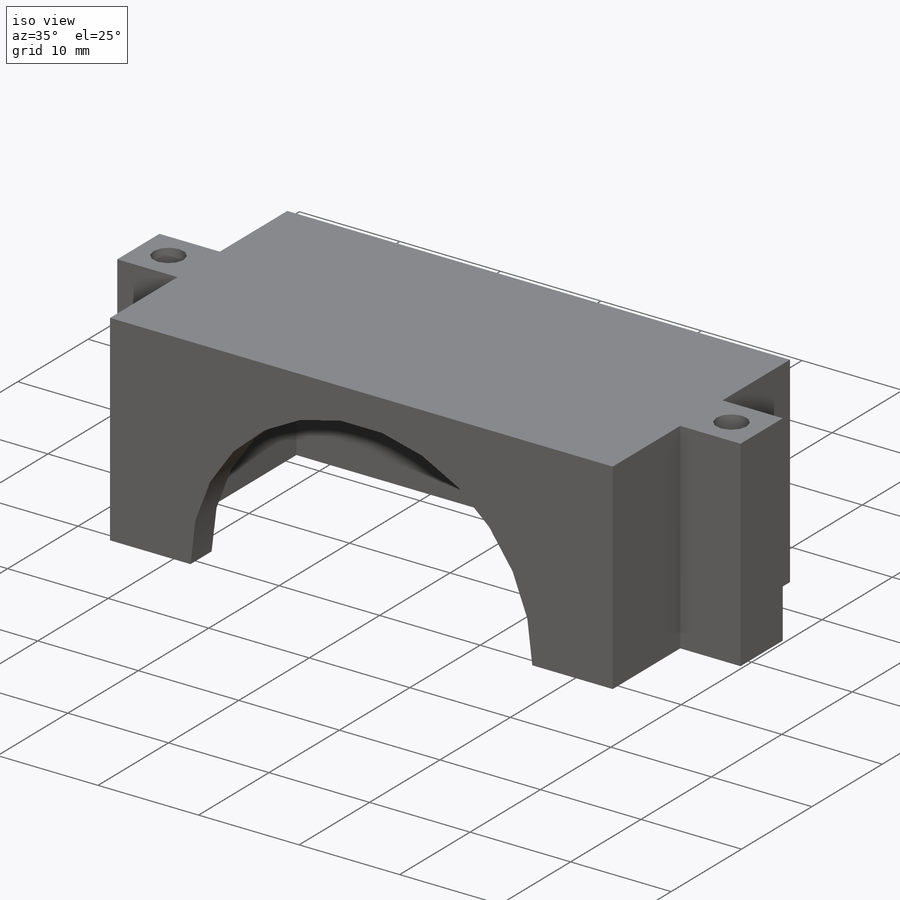
[diagram: iso view]
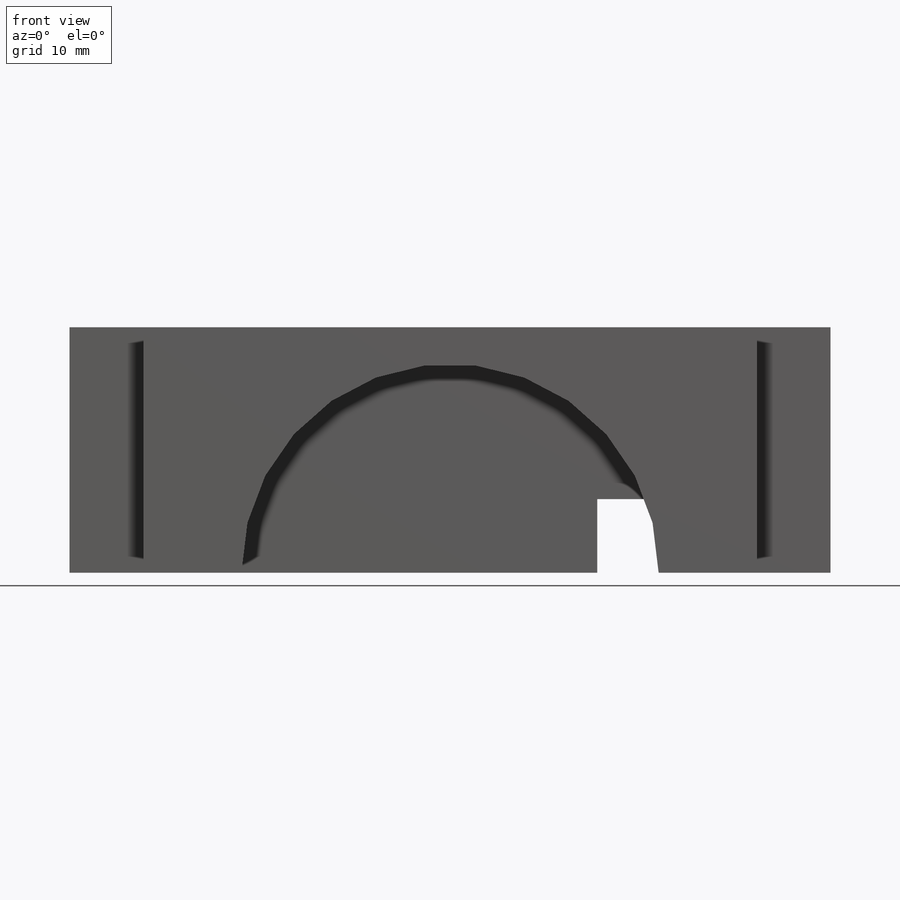
[diagram: front view]
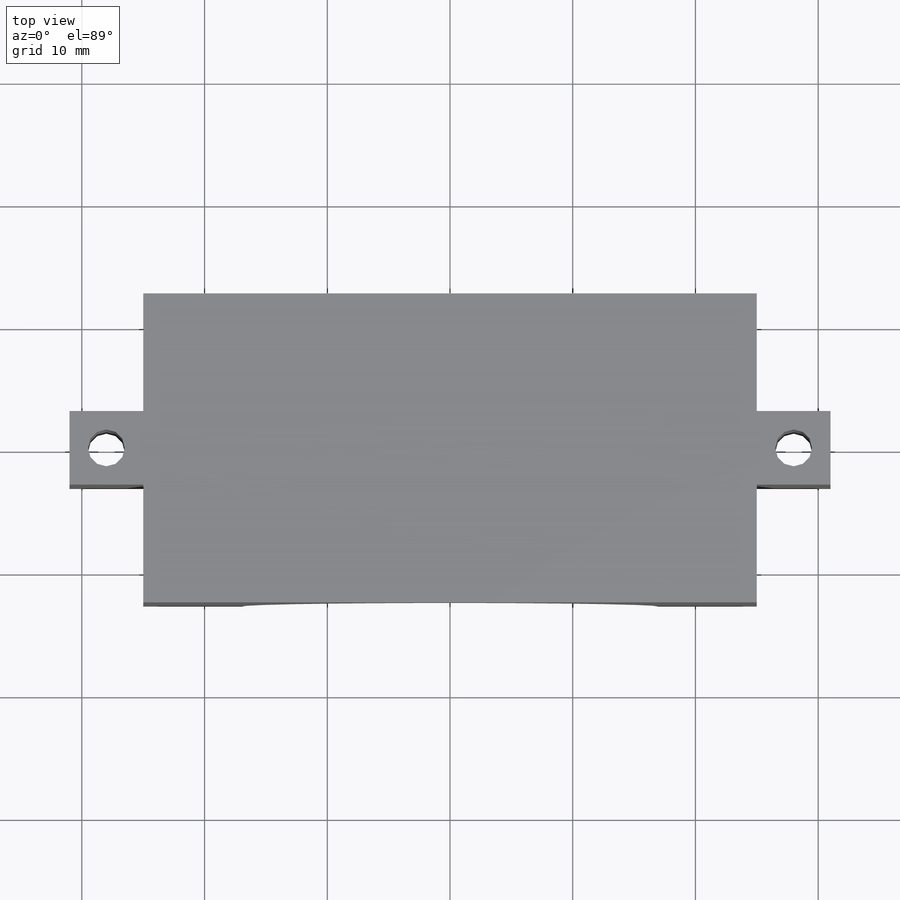
[diagram: top view]
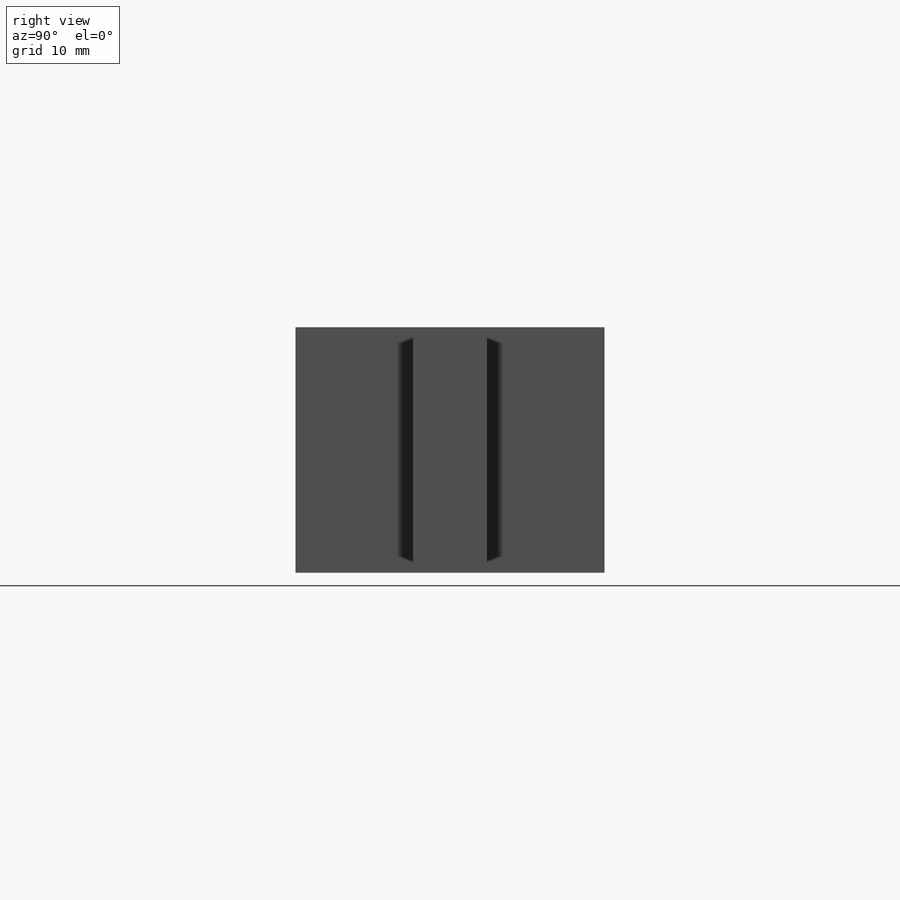
[diagram: right view]
SOLIDWORKS PART (.sldprt)
format: sldprt  version: not decoded by parser v0  size: 239,616 bytes
history: native  units: mm
features: sketch x5, cut_extrude x3, extrude x2, material x1 (+13 scaffold rows collapsed)
feature tree (24):
  scaffold x13  (default folders/planes/origin — collapsed)
  material  "Material <not specified>"
  sketch  "Sketch1"  dims[D1=44.0mm D2=19.18mm D3=50.0mm D4=25.18mm D5=3.0mm D6=3.0mm]
  extrude  "Boss-Extrude1"  Depth=20mm
  sketch  "Sketch6"  dims[D1=44.0mm D2=19.18mm]
  cut_extrude  "Cut-Extrude4"  Depth=17mm
  sketch  "Sketch7"  dims[D1=~16.114408mm]
  cut_extrude  "Cut-Extrude5"  [1 undecoded]
  sketch  "Sketch8"  dims[D1=3.0mm D2=0.0mm D3=44.0mm D4=17.0mm D5=10.0mm D6=6.0mm]
  cut_extrude  "Cut-Extrude6"  Depth=17mm
  sketch  "Sketch9"  dims[D4=3.0mm D1=3.0mm D2=6.0mm D3=6.0mm]
  extrude  "Boss-Extrude2"  Depth=20mm
decode coverage: 9 of 10 modeling features carry decoded parameters
note: ~ marks probable driven/reference dimensions
note: 1 parameter value undecoded
note: suppression state not decoded; provenance and decode notes live in map.json
